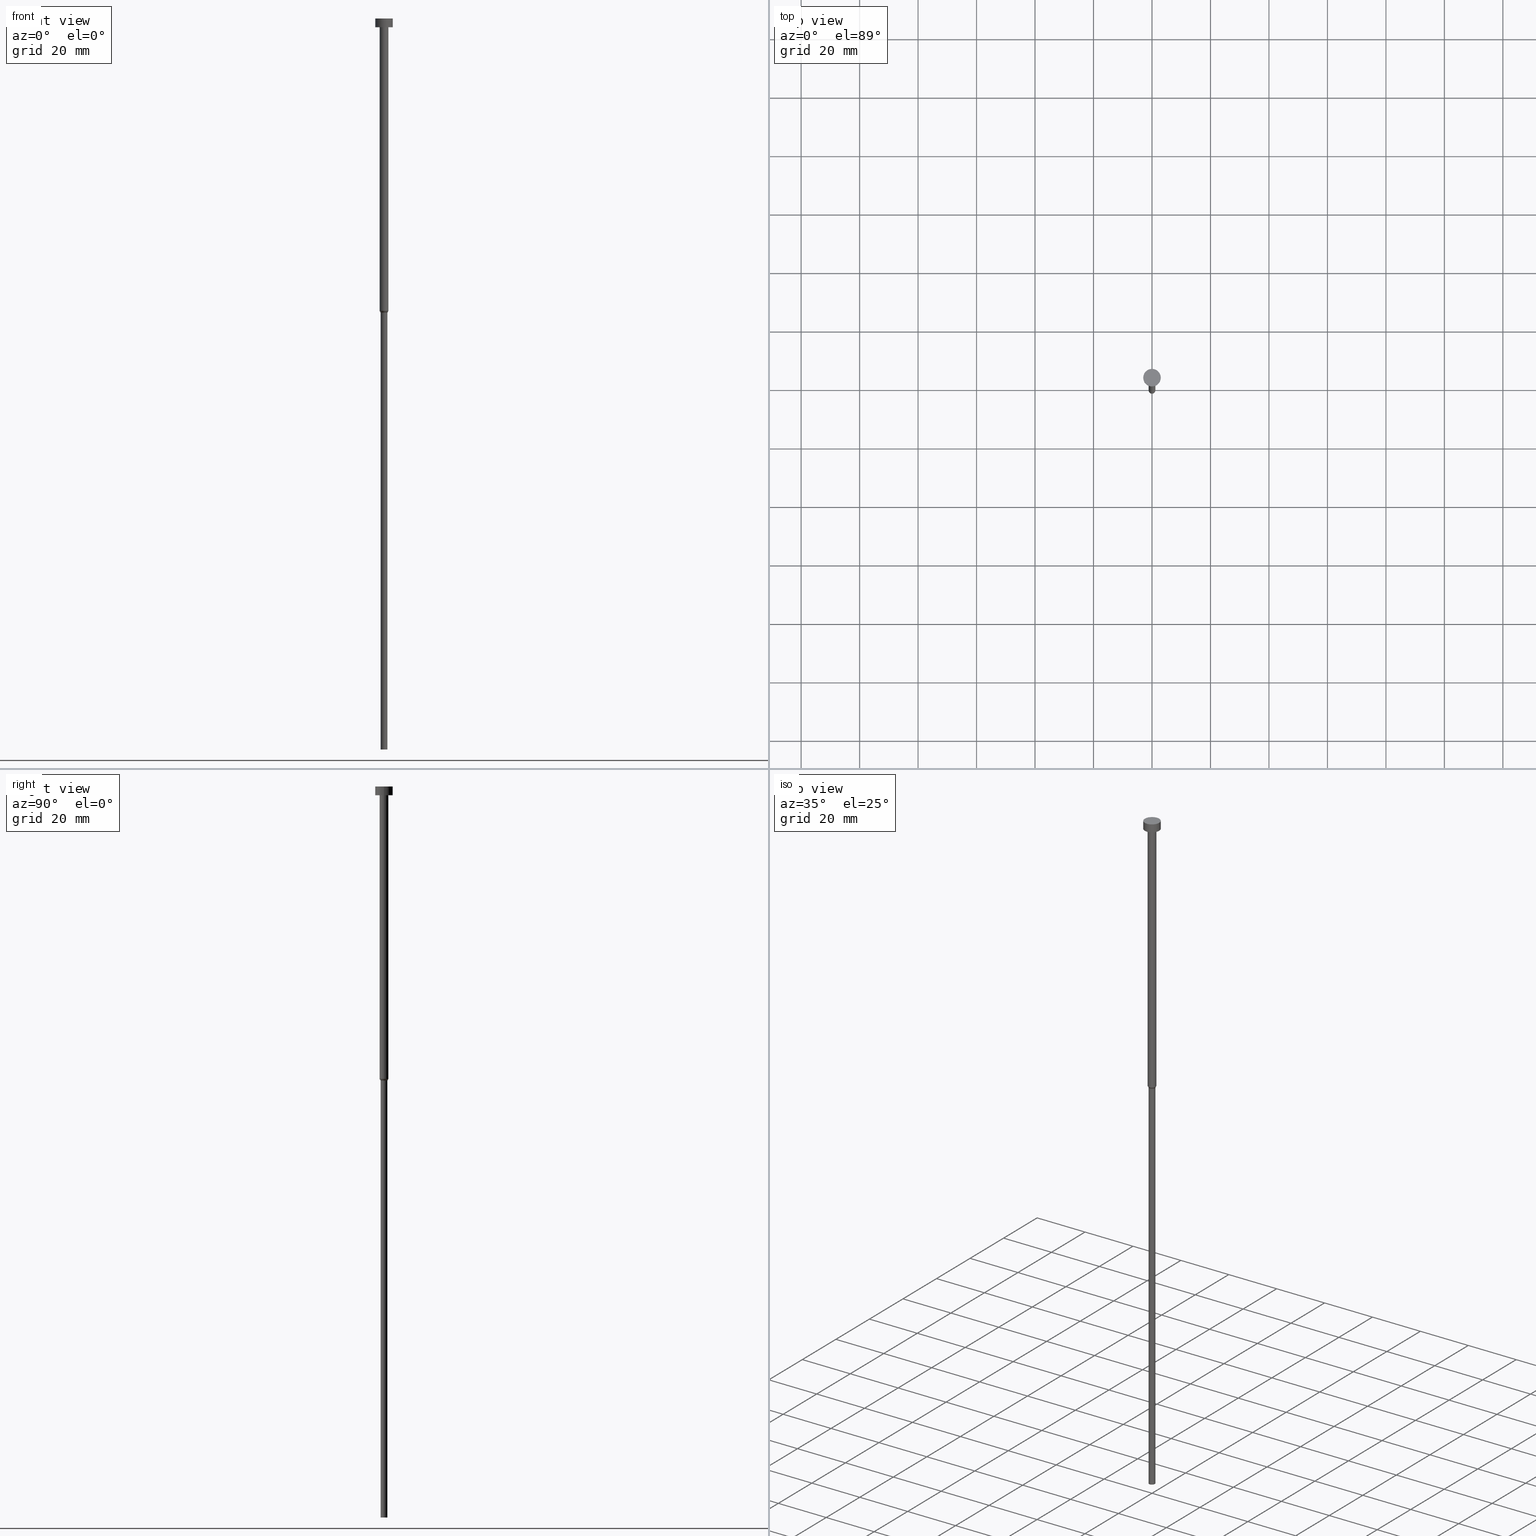
[diagram: canonical four-view strip — front | top / right | iso, engineering-drawing reading convention]
A machine part, canonical four-view strip (front | top / right | iso — engineering-drawing reading convention). The complete STEP part file that produces these views, byte-faithful:
ISO-10303-21;
HEADER;
FILE_DESCRIPTION (( 'STEP AP203' ),
    '1' );
FILE_NAME ('2aaf.STEP',
    '2023-02-13T09:00:33',
    ( '' ),
    ( '' ),
    'SwSTEP 2.0',
    'SolidWorks 2019',
    '' );
FILE_SCHEMA (( 'CONFIG_CONTROL_DESIGN' ));
ENDSEC;

DATA;
#1 = CARTESIAN_POINT ( 'NONE',  ( 0.000000000000000000, 0.000000000000000000, -3.000000000000000888 ) ) ;
#2 = LINE ( 'NONE', #136, #347 ) ;
#3 = CC_DESIGN_APPROVAL ( #254, ( #331 ) ) ;
#4 = DIRECTION ( 'NONE',  ( 1.000000000000000000, 0.000000000000000000, 0.000000000000000000 ) ) ;
#5 = ORIENTED_EDGE ( 'NONE', *, *, #65, .T. ) ;
#6 =( LENGTH_UNIT ( ) NAMED_UNIT ( * ) SI_UNIT ( .MILLI., .METRE. ) );
#7 = EDGE_CURVE ( 'NONE', #235, #130, #240, .T. ) ;
#8 = UNCERTAINTY_MEASURE_WITH_UNIT (LENGTH_MEASURE( 1.000000000000000082E-05 ), #6, 'distance_accuracy_value', 'NONE');
#9 = DIRECTION ( 'NONE',  ( 0.5000000000000016653, 0.000000000000000000, 0.8660254037844377084 ) ) ;
#10 = AXIS2_PLACEMENT_3D ( 'NONE', #40, #64, #274 ) ;
#11 = CARTESIAN_POINT ( 'NONE',  ( 0.000000000000000000, 0.000000000000000000, -250.0000000000000000 ) ) ;
#12 = DIRECTION ( 'NONE',  ( 0.000000000000000000, 0.000000000000000000, -1.000000000000000000 ) ) ;
#13 = DIRECTION ( 'NONE',  ( 0.000000000000000000, -0.000000000000000000, 1.000000000000000000 ) ) ;
#14 = APPROVAL_STATUS ( 'not_yet_approved' ) ;
#15 = AXIS2_PLACEMENT_3D ( 'NONE', #135, #355, #4 ) ;
#16 = AXIS2_PLACEMENT_3D ( 'NONE', #251, #172, #204 ) ;
#17 = DATE_AND_TIME ( #175, #112 ) ;
#18 = ORIENTED_EDGE ( 'NONE', *, *, #294, .F. ) ;
#19 = ADVANCED_FACE ( 'NONE', ( #150 ), #182, .T. ) ;
#20 = EDGE_LOOP ( 'NONE', ( #265, #214, #69, #149 ) ) ;
#21 = EDGE_LOOP ( 'NONE', ( #132, #293, #155, #314 ) ) ;
#22 = APPROVAL_PERSON_ORGANIZATION ( #127, #254, #287 ) ;
#23 = CALENDAR_DATE ( 2023, 13, 2 ) ;
#24 = ORIENTED_EDGE ( 'NONE', *, *, #241, .T. ) ;
#25 = CC_DESIGN_PERSON_AND_ORGANIZATION_ASSIGNMENT ( #234, #70, ( #227 ) ) ;
#26 = EDGE_LOOP ( 'NONE', ( #324, #24, #71, #288 ) ) ;
#27 = LINE ( 'NONE', #328, #263 ) ;
#28 = AXIS2_PLACEMENT_3D ( 'NONE', #307, #143, #90 ) ;
#29 = LINE ( 'NONE', #269, #142 ) ;
#30 = DIRECTION ( 'NONE',  ( -0.000000000000000000, -0.000000000000000000, 1.000000000000000000 ) ) ;
#31 = FACE_OUTER_BOUND ( 'NONE', #49, .T. ) ;
#32 = AXIS2_PLACEMENT_3D ( 'NONE', #113, #133, #296 ) ;
#33 = CONICAL_SURFACE ( 'NONE', #10, 1.500000000000000000, 0.5235987755983008141 ) ;
#34 = EDGE_CURVE ( 'NONE', #46, #335, #2, .T. ) ;
#35 = DIRECTION ( 'NONE',  ( 1.000000000000000000, 0.000000000000000000, 0.000000000000000000 ) ) ;
#36 = LINE ( 'NONE', #168, #106 ) ;
#37 = CARTESIAN_POINT ( 'NONE',  ( 3.000000000000000000, 0.000000000000000000, -3.000000000000000888 ) ) ;
#38 = CARTESIAN_POINT ( 'NONE',  ( -3.000000000000000000, 3.673940397442059868E-16, -3.000000000000000888 ) ) ;
#39 = ADVANCED_FACE ( 'NONE', ( #31 ), #298, .T. ) ;
#40 = CARTESIAN_POINT ( 'NONE',  ( 0.000000000000000000, 0.000000000000000000, -100.0000000000000000 ) ) ;
#41 = EDGE_CURVE ( 'NONE', #46, #44, #98, .T. ) ;
#42 = ORIENTED_EDGE ( 'NONE', *, *, #248, .T. ) ;
#43 = APPLICATION_PROTOCOL_DEFINITION ( 'international standard', 'config_control_design', 1994, #320 ) ;
#44 = VERTEX_POINT ( 'NONE', #351 ) ;
#45 = COORDINATED_UNIVERSAL_TIME_OFFSET ( 1, 0, .AHEAD. ) ;
#46 = VERTEX_POINT ( 'NONE', #246 ) ;
#47 = APPROVAL_ROLE ( '' ) ;
#48 = CARTESIAN_POINT ( 'NONE',  ( 0.000000000000000000, 0.000000000000000000, 0.000000000000000000 ) ) ;
#49 = EDGE_LOOP ( 'NONE', ( #97, #290, #343, #211 ) ) ;
#50 = DIRECTION ( 'NONE',  ( 1.000000000000000000, 0.000000000000000000, 0.000000000000000000 ) ) ;
#51 = EDGE_CURVE ( 'NONE', #257, #185, #105, .T. ) ;
#52 = DIRECTION ( 'NONE',  ( 1.000000000000000000, 0.000000000000000000, 0.000000000000000000 ) ) ;
#53 = CARTESIAN_POINT ( 'NONE',  ( 0.000000000000000000, 0.000000000000000000, -100.0000000000000000 ) ) ;
#54 = FACE_OUTER_BOUND ( 'NONE', #26, .T. ) ;
#55 = CARTESIAN_POINT ( 'NONE',  ( 1.149999999999999911, 0.000000000000000000, -100.6062177826491109 ) ) ;
#56 = EDGE_CURVE ( 'NONE', #284, #185, #29, .T. ) ;
#57 = CONICAL_SURFACE ( 'NONE', #302, 1.500000000000000000, 0.5235987755983008141 ) ;
#58 = LOCAL_TIME ( 10, 0, 33.00000000000000000, #84 ) ;
#59 = PLANE ( 'NONE',  #148 ) ;
#60 = DIRECTION ( 'NONE',  ( 1.000000000000000000, 0.000000000000000000, 0.000000000000000000 ) ) ;
#61 = AXIS2_PLACEMENT_3D ( 'NONE', #327, #329, #163 ) ;
#62 = DIRECTION ( 'NONE',  ( -0.000000000000000000, -0.000000000000000000, 1.000000000000000000 ) ) ;
#63 = LOCAL_TIME ( 10, 0, 33.00000000000000000, #45 ) ;
#64 = DIRECTION ( 'NONE',  ( -0.000000000000000000, -0.000000000000000000, 1.000000000000000000 ) ) ;
#65 = EDGE_CURVE ( 'NONE', #102, #335, #189, .T. ) ;
#66 = DATE_TIME_ROLE ( 'creation_date' ) ;
#67 = ORIENTED_EDGE ( 'NONE', *, *, #51, .T. ) ;
#68 = COORDINATED_UNIVERSAL_TIME_OFFSET ( 1, 0, .AHEAD. ) ;
#69 = ORIENTED_EDGE ( 'NONE', *, *, #34, .T. ) ;
#70 = PERSON_AND_ORGANIZATION_ROLE ( 'classification_officer' ) ;
#71 = ORIENTED_EDGE ( 'NONE', *, *, #207, .F. ) ;
#72 = DATE_AND_TIME ( #323, #159 ) ;
#73 = EDGE_LOOP ( 'NONE', ( #176, #114 ) ) ;
#74 = APPLICATION_PROTOCOL_DEFINITION ( 'international standard', 'config_control_design', 1994, #144 ) ;
#75 = ORIENTED_EDGE ( 'NONE', *, *, #122, .T. ) ;
#76 = AXIS2_PLACEMENT_3D ( 'NONE', #188, #81, #333 ) ;
#77 = CARTESIAN_POINT ( 'NONE',  ( -3.000000000000000000, 3.673940397442059868E-16, -3.673940397442059868E-16 ) ) ;
#78 = ADVANCED_FACE ( 'NONE', ( #54 ), #243, .T. ) ;
#79 = FACE_OUTER_BOUND ( 'NONE', #100, .T. ) ;
#80 = CALENDAR_DATE ( 2023, 13, 2 ) ;
#81 = DIRECTION ( 'NONE',  ( -0.000000000000000000, -0.000000000000000000, 1.000000000000000000 ) ) ;
#82 = CIRCLE ( 'NONE', #278, 3.000000000000000000 ) ;
#83 = CIRCLE ( 'NONE', #256, 1.149999999999999911 ) ;
#84 = COORDINATED_UNIVERSAL_TIME_OFFSET ( 1, 0, .AHEAD. ) ;
#85 = FACE_OUTER_BOUND ( 'NONE', #154, .T. ) ;
#86 = DIRECTION ( 'NONE',  ( 1.000000000000000000, 0.000000000000000000, 0.000000000000000000 ) ) ;
#87 = CC_DESIGN_PERSON_AND_ORGANIZATION_ASSIGNMENT ( #205, #313, ( #312 ) ) ;
#88 = AXIS2_PLACEMENT_3D ( 'NONE', #11, #12, #336 ) ;
#89 = CARTESIAN_POINT ( 'NONE',  ( 1.500000000000000000, 0.000000000000000000, -100.0000000000000000 ) ) ;
#90 = DIRECTION ( 'NONE',  ( 1.000000000000000000, 0.000000000000000000, 0.000000000000000000 ) ) ;
#91 = DIRECTION ( 'NONE',  ( -0.000000000000000000, -0.000000000000000000, 1.000000000000000000 ) ) ;
#92 = DIRECTION ( 'NONE',  ( 1.000000000000000000, 0.000000000000000000, 0.000000000000000000 ) ) ;
#93 = CC_DESIGN_PERSON_AND_ORGANIZATION_ASSIGNMENT ( #264, #236, ( #331 ) ) ;
#94 = PERSON_AND_ORGANIZATION ( #193, #177 ) ;
#95 = ORIENTED_EDGE ( 'NONE', *, *, #241, .F. ) ;
#96 = DATE_AND_TIME ( #23, #63 ) ;
#97 = ORIENTED_EDGE ( 'NONE', *, *, #56, .F. ) ;
#98 = CIRCLE ( 'NONE', #315, 1.500000000000000000 ) ;
#99 = PERSON_AND_ORGANIZATION ( #193, #177 ) ;
#100 = EDGE_LOOP ( 'NONE', ( #212, #206, #346, #208 ) ) ;
#101 = CC_DESIGN_PERSON_AND_ORGANIZATION_ASSIGNMENT ( #99, #147, ( #219 ) ) ;
#102 = VERTEX_POINT ( 'NONE', #157 ) ;
#103 = ORIENTED_EDGE ( 'NONE', *, *, #7, .T. ) ;
#104 = CARTESIAN_POINT ( 'NONE',  ( 0.000000000000000000, 0.000000000000000000, 0.000000000000000000 ) ) ;
#105 = CIRCLE ( 'NONE', #32, 3.000000000000000000 ) ;
#106 = VECTOR ( 'NONE', #116, 1000.000000000000000 ) ;
#107 = EDGE_CURVE ( 'NONE', #266, #284, #82, .T. ) ;
#108 = DIRECTION ( 'NONE',  ( 1.000000000000000000, 0.000000000000000000, 0.000000000000000000 ) ) ;
#109 = DATE_AND_TIME ( #80, #58 ) ;
#110 = FACE_OUTER_BOUND ( 'NONE', #261, .T. ) ;
#111 = CYLINDRICAL_SURFACE ( 'NONE', #61, 3.000000000000000000 ) ;
#112 = LOCAL_TIME ( 10, 0, 33.00000000000000000, #125 ) ;
#113 = CARTESIAN_POINT ( 'NONE',  ( 0.000000000000000000, 0.000000000000000000, -3.673940397442059868E-16 ) ) ;
#114 = ORIENTED_EDGE ( 'NONE', *, *, #345, .F. ) ;
#115 =( NAMED_UNIT ( * ) PLANE_ANGLE_UNIT ( ) SI_UNIT ( $, .RADIAN. ) );
#116 = DIRECTION ( 'NONE',  ( -0.000000000000000000, -0.000000000000000000, 1.000000000000000000 ) ) ;
#117 = EDGE_CURVE ( 'NONE', #237, #44, #268, .T. ) ;
#118 = AXIS2_PLACEMENT_3D ( 'NONE', #48, #137, #50 ) ;
#119 = CARTESIAN_POINT ( 'NONE',  ( -1.149999999999999911, 1.408343819019456028E-16, -250.0000000000000000 ) ) ;
#120 = CARTESIAN_POINT ( 'NONE',  ( 1.500000000000000000, 0.000000000000000000, -3.000000000000000888 ) ) ;
#121 = SECURITY_CLASSIFICATION_LEVEL ( 'unclassified' ) ;
#122 = EDGE_CURVE ( 'NONE', #322, #235, #170, .T. ) ;
#123 = PERSON_AND_ORGANIZATION ( #193, #177 ) ;
#124 = ORIENTED_EDGE ( 'NONE', *, *, #51, .F. ) ;
#125 = COORDINATED_UNIVERSAL_TIME_OFFSET ( 1, 0, .AHEAD. ) ;
#126 = ORIENTED_EDGE ( 'NONE', *, *, #332, .T. ) ;
#127 = PERSON_AND_ORGANIZATION ( #193, #177 ) ;
#128 = CIRCLE ( 'NONE', #304, 1.149999999999999911 ) ;
#129 = ORIENTED_EDGE ( 'NONE', *, *, #332, .F. ) ;
#130 = VERTEX_POINT ( 'NONE', #55 ) ;
#131 = ADVANCED_FACE ( 'NONE', ( #110 ), #216, .T. ) ;
#132 = ORIENTED_EDGE ( 'NONE', *, *, #207, .T. ) ;
#133 = DIRECTION ( 'NONE',  ( -0.000000000000000000, -0.000000000000000000, 1.000000000000000000 ) ) ;
#134 = ADVANCED_BREP_SHAPE_REPRESENTATION ( '2aaf', ( #281, #354 ), #316 ) ;
#135 = CARTESIAN_POINT ( 'NONE',  ( 0.000000000000000000, 0.000000000000000000, -250.0000000000000000 ) ) ;
#136 = CARTESIAN_POINT ( 'NONE',  ( 1.500000000000000000, 0.000000000000000000, 0.000000000000000000 ) ) ;
#137 = DIRECTION ( 'NONE',  ( -0.000000000000000000, -0.000000000000000000, 1.000000000000000000 ) ) ;
#138 = CIRCLE ( 'NONE', #191, 1.500000000000000000 ) ;
#139 = ORIENTED_EDGE ( 'NONE', *, *, #41, .T. ) ;
#140 = DIRECTION ( 'NONE',  ( -0.000000000000000000, -0.000000000000000000, 1.000000000000000000 ) ) ;
#141 = DIRECTION ( 'NONE',  ( -0.000000000000000000, -0.000000000000000000, 1.000000000000000000 ) ) ;
#142 = VECTOR ( 'NONE', #247, 1000.000000000000000 ) ;
#143 = DIRECTION ( 'NONE',  ( -0.000000000000000000, -0.000000000000000000, 1.000000000000000000 ) ) ;
#144 = APPLICATION_CONTEXT ( 'configuration controlled 3d designs of mechanical parts and assemblies' ) ;
#145 = DIRECTION ( 'NONE',  ( 1.000000000000000000, 0.000000000000000000, 0.000000000000000000 ) ) ;
#146 = ADVANCED_FACE ( 'NONE', ( #224 ), #111, .T. ) ;
#147 = PERSON_AND_ORGANIZATION_ROLE ( 'creator' ) ;
#148 = AXIS2_PLACEMENT_3D ( 'NONE', #230, #13, #340 ) ;
#149 = ORIENTED_EDGE ( 'NONE', *, *, #65, .F. ) ;
#150 = FACE_OUTER_BOUND ( 'NONE', #20, .T. ) ;
#151 = ORIENTED_EDGE ( 'NONE', *, *, #325, .T. ) ;
#152 = VECTOR ( 'NONE', #349, 1000.000000000000000 ) ;
#153 = APPROVAL_DATE_TIME ( #17, #254 ) ;
#154 = EDGE_LOOP ( 'NONE', ( #67, #42 ) ) ;
#155 = ORIENTED_EDGE ( 'NONE', *, *, #41, .F. ) ;
#156 = APPROVAL_DATE_TIME ( #109, #300 ) ;
#157 = CARTESIAN_POINT ( 'NONE',  ( -1.500000000000000000, 1.836970198721029934E-16, -3.000000000000000888 ) ) ;
#158 = DIRECTION ( 'NONE',  ( 1.000000000000000000, 0.000000000000000000, 0.000000000000000000 ) ) ;
#159 = LOCAL_TIME ( 10, 0, 33.00000000000000000, #68 ) ;
#160 = CARTESIAN_POINT ( 'NONE',  ( 0.000000000000000000, 0.000000000000000000, -100.0000000000000000 ) ) ;
#161 = EDGE_CURVE ( 'NONE', #266, #257, #27, .T. ) ;
#162 = DIRECTION ( 'NONE',  ( 1.000000000000000000, 0.000000000000000000, 0.000000000000000000 ) ) ;
#163 = DIRECTION ( 'NONE',  ( 1.000000000000000000, 0.000000000000000000, 0.000000000000000000 ) ) ;
#164 = AXIS2_PLACEMENT_3D ( 'NONE', #104, #30, #108 ) ;
#165 = CC_DESIGN_DATE_AND_TIME_ASSIGNMENT ( #178, #66, ( #219 ) ) ;
#166 = EDGE_LOOP ( 'NONE', ( #126, #5 ) ) ;
#167 = FACE_OUTER_BOUND ( 'NONE', #179, .T. ) ;
#168 = CARTESIAN_POINT ( 'NONE',  ( -1.149999999999999911, 1.408343819019456028E-16, 0.000000000000000000 ) ) ;
#169 = CARTESIAN_POINT ( 'NONE',  ( 0.000000000000000000, 0.000000000000000000, -100.6062177826491109 ) ) ;
#170 = CIRCLE ( 'NONE', #15, 1.149999999999999911 ) ;
#171 = LOCAL_TIME ( 10, 0, 33.00000000000000000, #310 ) ;
#172 = DIRECTION ( 'NONE',  ( 0.000000000000000000, 0.000000000000000000, -1.000000000000000000 ) ) ;
#173 = ADVANCED_FACE ( 'NONE', ( #79 ), #57, .T. ) ;
#174 = PLANE ( 'NONE',  #88 ) ;
#175 = CALENDAR_DATE ( 2023, 13, 2 ) ;
#176 = ORIENTED_EDGE ( 'NONE', *, *, #107, .F. ) ;
#177 = ORGANIZATION ( 'NEUR�EN�', 'NEUR�EN�', '' ) ;
#178 = DATE_AND_TIME ( #255, #171 ) ;
#179 = EDGE_LOOP ( 'NONE', ( #18, #318 ) ) ;
#180 = DIRECTION ( 'NONE',  ( 0.000000000000000000, 0.000000000000000000, 1.000000000000000000 ) ) ;
#181 = CARTESIAN_POINT ( 'NONE',  ( 1.149999999999999911, 0.000000000000000000, 0.000000000000000000 ) ) ;
#182 = CYLINDRICAL_SURFACE ( 'NONE', #118, 1.500000000000000000 ) ;
#183 = APPROVAL_STATUS ( 'not_yet_approved' ) ;
#184 = VECTOR ( 'NONE', #228, 1000.000000000000000 ) ;
#185 = VERTEX_POINT ( 'NONE', #77 ) ;
#186 = ADVANCED_FACE ( 'NONE', ( #187 ), #295, .T. ) ;
#187 = FACE_OUTER_BOUND ( 'NONE', #344, .T. ) ;
#188 = CARTESIAN_POINT ( 'NONE',  ( 0.000000000000000000, 0.000000000000000000, 0.000000000000000000 ) ) ;
#189 = CIRCLE ( 'NONE', #326, 1.500000000000000000 ) ;
#190 = DIRECTION ( 'NONE',  ( -0.000000000000000000, -0.000000000000000000, 1.000000000000000000 ) ) ;
#191 = AXIS2_PLACEMENT_3D ( 'NONE', #342, #141, #200 ) ;
#192 = CARTESIAN_POINT ( 'NONE',  ( -1.500000000000000000, 1.836970198721029934E-16, -100.0000000000000000 ) ) ;
#193 = PERSON ( 'NEUR�EN�', 'NEUR�EN�', 'NEUR�EN�', ('NEUR�EN�'), ('NEUR�EN�'), ('NEUR�EN�') ) ;
#194 = DIRECTION ( 'NONE',  ( -0.000000000000000000, -0.000000000000000000, 1.000000000000000000 ) ) ;
#195 = CC_DESIGN_PERSON_AND_ORGANIZATION_ASSIGNMENT ( #123, #209, ( #331 ) ) ;
#196 = DESIGN_CONTEXT ( 'detailed design', #320, 'design' ) ;
#197 = ORIENTED_EDGE ( 'NONE', *, *, #56, .T. ) ;
#198 = CARTESIAN_POINT ( 'NONE',  ( 0.000000000000000000, 0.000000000000000000, -3.673940397442059868E-16 ) ) ;
#199 = CIRCLE ( 'NONE', #232, 3.000000000000000000 ) ;
#200 = DIRECTION ( 'NONE',  ( 1.000000000000000000, 0.000000000000000000, 0.000000000000000000 ) ) ;
#201 = FACE_OUTER_BOUND ( 'NONE', #21, .T. ) ;
#202 = DIRECTION ( 'NONE',  ( -0.000000000000000000, -0.000000000000000000, 1.000000000000000000 ) ) ;
#203 = ADVANCED_FACE ( 'NONE', ( #85 ), #59, .T. ) ;
#204 = DIRECTION ( 'NONE',  ( -1.000000000000000000, 0.000000000000000000, -0.000000000000000000 ) ) ;
#205 = PERSON_AND_ORGANIZATION ( #193, #177 ) ;
#206 = ORIENTED_EDGE ( 'NONE', *, *, #352, .T. ) ;
#207 = EDGE_CURVE ( 'NONE', #130, #237, #83, .T. ) ;
#208 = ORIENTED_EDGE ( 'NONE', *, *, #272, .F. ) ;
#209 = PERSON_AND_ORGANIZATION_ROLE ( 'design_supplier' ) ;
#210 = APPROVAL_PERSON_ORGANIZATION ( #260, #300, #348 ) ;
#211 = ORIENTED_EDGE ( 'NONE', *, *, #248, .F. ) ;
#212 = ORIENTED_EDGE ( 'NONE', *, *, #117, .F. ) ;
#213 = MECHANICAL_CONTEXT ( 'NONE', #144, 'mechanical' ) ;
#214 = ORIENTED_EDGE ( 'NONE', *, *, #272, .T. ) ;
#215 = AXIS2_PLACEMENT_3D ( 'NONE', #198, #62, #92 ) ;
#216 = CYLINDRICAL_SURFACE ( 'NONE', #221, 1.500000000000000000 ) ;
#217 = SHAPE_DEFINITION_REPRESENTATION ( #319, #134 ) ;
#218 = CARTESIAN_POINT ( 'NONE',  ( 0.000000000000000000, 0.000000000000000000, 0.000000000000000000 ) ) ;
#219 = PRODUCT_DEFINITION ( 'NEZN�M�', '', #331, #196 ) ;
#220 = DIRECTION ( 'NONE',  ( -0.000000000000000000, -0.000000000000000000, 1.000000000000000000 ) ) ;
#221 = AXIS2_PLACEMENT_3D ( 'NONE', #218, #271, #52 ) ;
#222 = DIRECTION ( 'NONE',  ( -0.000000000000000000, -0.000000000000000000, 1.000000000000000000 ) ) ;
#223 = VECTOR ( 'NONE', #9, 1000.000000000000000 ) ;
#224 = FACE_OUTER_BOUND ( 'NONE', #292, .T. ) ;
#225 = LINE ( 'NONE', #231, #184 ) ;
#226 = APPROVAL_PERSON_ORGANIZATION ( #94, #229, #47 ) ;
#227 = SECURITY_CLASSIFICATION ( '', '', #121 ) ;
#228 = DIRECTION ( 'NONE',  ( -0.000000000000000000, -0.000000000000000000, 1.000000000000000000 ) ) ;
#229 = APPROVAL ( #183, 'NEUR�EN�' ) ;
#230 = CARTESIAN_POINT ( 'NONE',  ( 0.000000000000000000, 0.000000000000000000, -1.836970198721029934E-16 ) ) ;
#231 = CARTESIAN_POINT ( 'NONE',  ( -1.500000000000000000, 1.836970198721029934E-16, 0.000000000000000000 ) ) ;
#232 = AXIS2_PLACEMENT_3D ( 'NONE', #282, #91, #60 ) ;
#233 = CARTESIAN_POINT ( 'NONE',  ( 0.000000000000000000, 0.000000000000000000, 0.000000000000000000 ) ) ;
#234 = PERSON_AND_ORGANIZATION ( #193, #177 ) ;
#235 = VERTEX_POINT ( 'NONE', #306 ) ;
#236 = PERSON_AND_ORGANIZATION_ROLE ( 'creator' ) ;
#237 = VERTEX_POINT ( 'NONE', #338 ) ;
#238 = CC_DESIGN_APPROVAL ( #229, ( #219 ) ) ;
#239 = APPROVAL_STATUS ( 'not_yet_approved' ) ;
#240 = LINE ( 'NONE', #181, #152 ) ;
#241 = EDGE_CURVE ( 'NONE', #322, #237, #36, .T. ) ;
#242 = ORIENTED_EDGE ( 'NONE', *, *, #161, .F. ) ;
#243 = CYLINDRICAL_SURFACE ( 'NONE', #164, 1.149999999999999911 ) ;
#244 = CARTESIAN_POINT ( 'NONE',  ( 0.000000000000000000, 0.000000000000000000, 0.000000000000000000 ) ) ;
#245 = DIRECTION ( 'NONE',  ( -0.000000000000000000, -0.000000000000000000, 1.000000000000000000 ) ) ;
#246 = CARTESIAN_POINT ( 'NONE',  ( 1.500000000000000000, 0.000000000000000000, -100.0000000000000000 ) ) ;
#247 = DIRECTION ( 'NONE',  ( -0.000000000000000000, -0.000000000000000000, 1.000000000000000000 ) ) ;
#248 = EDGE_CURVE ( 'NONE', #185, #257, #297, .T. ) ;
#249 = DIRECTION ( 'NONE',  ( -0.000000000000000000, -0.000000000000000000, 1.000000000000000000 ) ) ;
#250 = FACE_OUTER_BOUND ( 'NONE', #73, .T. ) ;
#251 = CARTESIAN_POINT ( 'NONE',  ( 0.000000000000000000, -3.000000000000000000, -3.000000000000000888 ) ) ;
#252 = CC_DESIGN_SECURITY_CLASSIFICATION ( #227, ( #331 ) ) ;
#253 = CARTESIAN_POINT ( 'NONE',  ( 0.000000000000000000, 0.000000000000000000, -250.0000000000000000 ) ) ;
#254 = APPROVAL ( #14, 'NEUR�EN�' ) ;
#255 = CALENDAR_DATE ( 2023, 13, 2 ) ;
#256 = AXIS2_PLACEMENT_3D ( 'NONE', #275, #140, #280 ) ;
#257 = VERTEX_POINT ( 'NONE', #277 ) ;
#258 = APPROVAL_DATE_TIME ( #72, #229 ) ;
#259 = ORIENTED_EDGE ( 'NONE', *, *, #34, .F. ) ;
#260 = PERSON_AND_ORGANIZATION ( #193, #177 ) ;
#261 = EDGE_LOOP ( 'NONE', ( #139, #151, #129, #259 ) ) ;
#262 = PRODUCT_RELATED_PRODUCT_CATEGORY ( 'detail', '', ( #312 ) ) ;
#263 = VECTOR ( 'NONE', #273, 1000.000000000000000 ) ;
#264 = PERSON_AND_ORGANIZATION ( #193, #177 ) ;
#265 = ORIENTED_EDGE ( 'NONE', *, *, #325, .F. ) ;
#266 = VERTEX_POINT ( 'NONE', #37 ) ;
#267 = CC_DESIGN_DATE_AND_TIME_ASSIGNMENT ( #96, #289, ( #227 ) ) ;
#268 = LINE ( 'NONE', #192, #330 ) ;
#269 = CARTESIAN_POINT ( 'NONE',  ( -3.000000000000000000, 3.673940397442059868E-16, 0.000000000000000000 ) ) ;
#270 = DIRECTION ( 'NONE',  ( 1.000000000000000000, 0.000000000000000000, 0.000000000000000000 ) ) ;
#271 = DIRECTION ( 'NONE',  ( -0.000000000000000000, -0.000000000000000000, 1.000000000000000000 ) ) ;
#272 = EDGE_CURVE ( 'NONE', #44, #46, #138, .T. ) ;
#273 = DIRECTION ( 'NONE',  ( -0.000000000000000000, -0.000000000000000000, 1.000000000000000000 ) ) ;
#274 = DIRECTION ( 'NONE',  ( 1.000000000000000000, 0.000000000000000000, 0.000000000000000000 ) ) ;
#275 = CARTESIAN_POINT ( 'NONE',  ( 0.000000000000000000, 0.000000000000000000, -100.6062177826491109 ) ) ;
#276 = EDGE_CURVE ( 'NONE', #130, #46, #305, .T. ) ;
#277 = CARTESIAN_POINT ( 'NONE',  ( 3.000000000000000000, 0.000000000000000000, -3.673940397442059868E-16 ) ) ;
#278 = AXIS2_PLACEMENT_3D ( 'NONE', #334, #194, #86 ) ;
#279 = CIRCLE ( 'NONE', #286, 1.149999999999999911 ) ;
#280 = DIRECTION ( 'NONE',  ( 1.000000000000000000, 0.000000000000000000, 0.000000000000000000 ) ) ;
#281 = MANIFOLD_SOLID_BREP ( 'Rotovat1', #353 ) ;
#282 = CARTESIAN_POINT ( 'NONE',  ( 0.000000000000000000, 0.000000000000000000, -3.000000000000000888 ) ) ;
#283 =( NAMED_UNIT ( * ) SI_UNIT ( $, .STERADIAN. ) SOLID_ANGLE_UNIT ( ) );
#284 = VERTEX_POINT ( 'NONE', #38 ) ;
#285 = AXIS2_PLACEMENT_3D ( 'NONE', #244, #190, #270 ) ;
#286 = AXIS2_PLACEMENT_3D ( 'NONE', #253, #249, #341 ) ;
#287 = APPROVAL_ROLE ( '' ) ;
#288 = ORIENTED_EDGE ( 'NONE', *, *, #7, .F. ) ;
#289 = DATE_TIME_ROLE ( 'classification_date' ) ;
#290 = ORIENTED_EDGE ( 'NONE', *, *, #345, .T. ) ;
#291 = ADVANCED_FACE ( 'NONE', ( #167 ), #174, .T. ) ;
#292 = EDGE_LOOP ( 'NONE', ( #350, #197, #124, #242 ) ) ;
#293 = ORIENTED_EDGE ( 'NONE', *, *, #117, .T. ) ;
#294 = EDGE_CURVE ( 'NONE', #235, #322, #279, .T. ) ;
#295 = CYLINDRICAL_SURFACE ( 'NONE', #76, 1.149999999999999911 ) ;
#296 = DIRECTION ( 'NONE',  ( 1.000000000000000000, 0.000000000000000000, 0.000000000000000000 ) ) ;
#297 = CIRCLE ( 'NONE', #215, 3.000000000000000000 ) ;
#298 = CYLINDRICAL_SURFACE ( 'NONE', #285, 3.000000000000000000 ) ;
#299 = DIRECTION ( 'NONE',  ( -0.000000000000000000, -0.000000000000000000, 1.000000000000000000 ) ) ;
#300 = APPROVAL ( #239, 'NEUR�EN�' ) ;
#301 = DIRECTION ( 'NONE',  ( -0.5000000000000016653, 6.123233995736786990E-17, 0.8660254037844377084 ) ) ;
#302 = AXIS2_PLACEMENT_3D ( 'NONE', #160, #222, #35 ) ;
#303 = FACE_BOUND ( 'NONE', #166, .T. ) ;
#304 = AXIS2_PLACEMENT_3D ( 'NONE', #169, #202, #145 ) ;
#305 = LINE ( 'NONE', #89, #223 ) ;
#306 = CARTESIAN_POINT ( 'NONE',  ( 1.149999999999999911, 0.000000000000000000, -250.0000000000000000 ) ) ;
#307 = CARTESIAN_POINT ( 'NONE',  ( 0.000000000000000000, 0.000000000000000000, -3.000000000000000888 ) ) ;
#308 = CIRCLE ( 'NONE', #28, 1.500000000000000000 ) ;
#309 = PLANE ( 'NONE',  #16 ) ;
#310 = COORDINATED_UNIVERSAL_TIME_OFFSET ( 1, 0, .AHEAD. ) ;
#311 = ORIENTED_EDGE ( 'NONE', *, *, #352, .F. ) ;
#312 = PRODUCT ( '2aaf', '2aaf', '', ( #213 ) ) ;
#313 = PERSON_AND_ORGANIZATION_ROLE ( 'design_owner' ) ;
#314 = ORIENTED_EDGE ( 'NONE', *, *, #276, .F. ) ;
#315 = AXIS2_PLACEMENT_3D ( 'NONE', #53, #245, #162 ) ;
#316 =( GEOMETRIC_REPRESENTATION_CONTEXT ( 3 ) GLOBAL_UNCERTAINTY_ASSIGNED_CONTEXT ( ( #8 ) ) GLOBAL_UNIT_ASSIGNED_CONTEXT ( ( #6, #115, #283 ) ) REPRESENTATION_CONTEXT ( 'NONE', 'WORKASPACE' ) );
#317 = ADVANCED_FACE ( 'NONE', ( #303, #250 ), #309, .T. ) ;
#318 = ORIENTED_EDGE ( 'NONE', *, *, #122, .F. ) ;
#319 = PRODUCT_DEFINITION_SHAPE ( 'NONE', 'NONE',  #219 ) ;
#320 = APPLICATION_CONTEXT ( 'configuration controlled 3d designs of mechanical parts and assemblies' ) ;
#321 = DIRECTION ( 'NONE',  ( 1.000000000000000000, 0.000000000000000000, 0.000000000000000000 ) ) ;
#322 = VERTEX_POINT ( 'NONE', #119 ) ;
#323 = CALENDAR_DATE ( 2023, 13, 2 ) ;
#324 = ORIENTED_EDGE ( 'NONE', *, *, #294, .T. ) ;
#325 = EDGE_CURVE ( 'NONE', #44, #102, #225, .T. ) ;
#326 = AXIS2_PLACEMENT_3D ( 'NONE', #1, #220, #158 ) ;
#327 = CARTESIAN_POINT ( 'NONE',  ( 0.000000000000000000, 0.000000000000000000, 0.000000000000000000 ) ) ;
#328 = CARTESIAN_POINT ( 'NONE',  ( 3.000000000000000000, 0.000000000000000000, 0.000000000000000000 ) ) ;
#329 = DIRECTION ( 'NONE',  ( -0.000000000000000000, -0.000000000000000000, 1.000000000000000000 ) ) ;
#330 = VECTOR ( 'NONE', #301, 1000.000000000000000 ) ;
#331 = PRODUCT_DEFINITION_FORMATION_WITH_SPECIFIED_SOURCE ( 'LIBOVOLN�', '', #312, .NOT_KNOWN. ) ;
#332 = EDGE_CURVE ( 'NONE', #335, #102, #308, .T. ) ;
#333 = DIRECTION ( 'NONE',  ( 1.000000000000000000, 0.000000000000000000, 0.000000000000000000 ) ) ;
#334 = CARTESIAN_POINT ( 'NONE',  ( 0.000000000000000000, 0.000000000000000000, -3.000000000000000888 ) ) ;
#335 = VERTEX_POINT ( 'NONE', #120 ) ;
#336 = DIRECTION ( 'NONE',  ( -1.000000000000000000, 0.000000000000000000, -0.000000000000000000 ) ) ;
#337 = ADVANCED_FACE ( 'NONE', ( #201 ), #33, .T. ) ;
#338 = CARTESIAN_POINT ( 'NONE',  ( -1.149999999999999911, 1.408343819019456028E-16, -100.6062177826491109 ) ) ;
#339 = CC_DESIGN_APPROVAL ( #300, ( #227 ) ) ;
#340 = DIRECTION ( 'NONE',  ( 1.000000000000000000, 0.000000000000000000, 0.000000000000000000 ) ) ;
#341 = DIRECTION ( 'NONE',  ( 1.000000000000000000, 0.000000000000000000, 0.000000000000000000 ) ) ;
#342 = CARTESIAN_POINT ( 'NONE',  ( 0.000000000000000000, 0.000000000000000000, -100.0000000000000000 ) ) ;
#343 = ORIENTED_EDGE ( 'NONE', *, *, #161, .T. ) ;
#344 = EDGE_LOOP ( 'NONE', ( #95, #75, #103, #311 ) ) ;
#345 = EDGE_CURVE ( 'NONE', #284, #266, #199, .T. ) ;
#346 = ORIENTED_EDGE ( 'NONE', *, *, #276, .T. ) ;
#347 = VECTOR ( 'NONE', #299, 1000.000000000000000 ) ;
#348 = APPROVAL_ROLE ( '' ) ;
#349 = DIRECTION ( 'NONE',  ( -0.000000000000000000, -0.000000000000000000, 1.000000000000000000 ) ) ;
#350 = ORIENTED_EDGE ( 'NONE', *, *, #107, .T. ) ;
#351 = CARTESIAN_POINT ( 'NONE',  ( -1.500000000000000000, 1.836970198721029934E-16, -100.0000000000000000 ) ) ;
#352 = EDGE_CURVE ( 'NONE', #237, #130, #128, .T. ) ;
#353 = CLOSED_SHELL ( 'NONE', ( #146, #131, #337, #78, #291, #186, #173, #19, #317, #39, #203 ) ) ;
#354 = AXIS2_PLACEMENT_3D ( 'NONE', #233, #180, #321 ) ;
#355 = DIRECTION ( 'NONE',  ( -0.000000000000000000, -0.000000000000000000, 1.000000000000000000 ) ) ;
ENDSEC;
END-ISO-10303-21;
